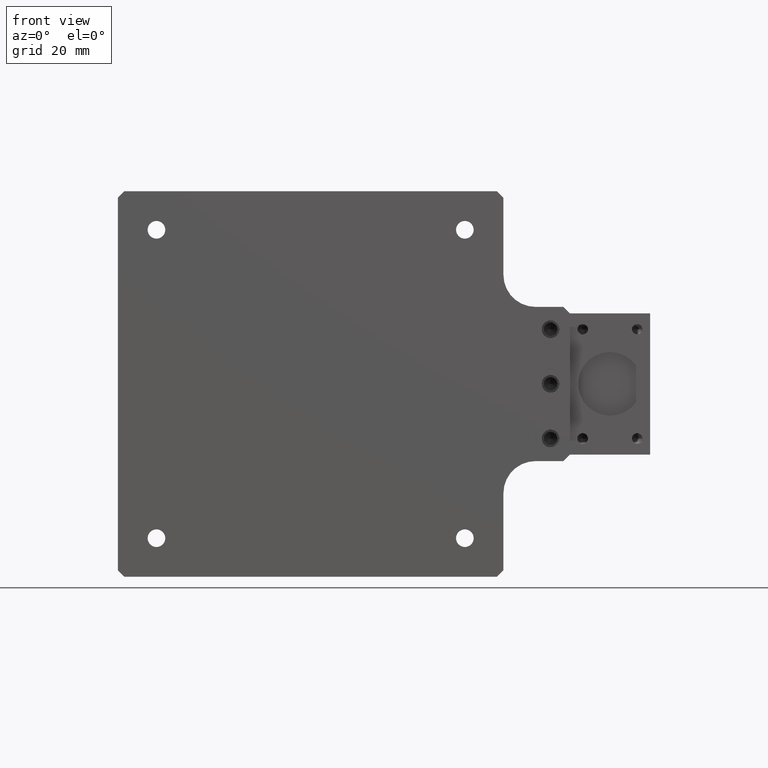
[diagram: clean part render]
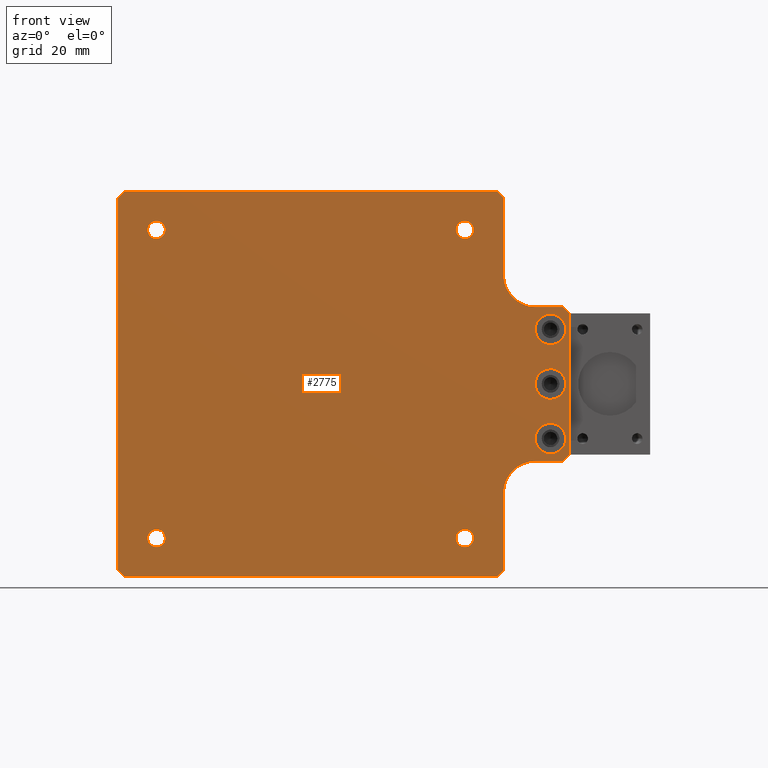
[diagram: same view with one face highlighted and labeled with its STEP entity id]
A machine part, front view. The second image highlights one B-rep face of the part: STEP entity #2775.
In plain terms, the highlighted planar face has unit normal (0, -1, 0).
Its self-contained STEP definition (entity closure, byte-faithful):
#1277=CARTESIAN_POINT('',(-5.833E1,1.E1,4.8E1));
#1278=DIRECTION('',(0.E0,-1.E0,0.E0));
#1279=DIRECTION('',(-1.E0,0.E0,0.E0));
#1280=AXIS2_PLACEMENT_3D('',#1277,#1278,#1279);
#1285=CARTESIAN_POINT('',(-5.833E1,1.E1,4.8E1));
#1286=DIRECTION('',(0.E0,-1.E0,0.E0));
#1287=DIRECTION('',(1.E0,0.E0,0.E0));
#1288=AXIS2_PLACEMENT_3D('',#1285,#1286,#1287);
#1293=CARTESIAN_POINT('',(3.767E1,1.E1,4.8E1));
#1294=DIRECTION('',(0.E0,-1.E0,0.E0));
#1295=DIRECTION('',(-1.E0,0.E0,0.E0));
#1296=AXIS2_PLACEMENT_3D('',#1293,#1294,#1295);
#1301=CARTESIAN_POINT('',(3.767E1,1.E1,4.8E1));
#1302=DIRECTION('',(0.E0,-1.E0,0.E0));
#1303=DIRECTION('',(1.E0,0.E0,0.E0));
#1304=AXIS2_PLACEMENT_3D('',#1301,#1302,#1303);
#1309=CARTESIAN_POINT('',(-5.833E1,1.E1,-4.8E1));
#1310=DIRECTION('',(0.E0,-1.E0,0.E0));
#1311=DIRECTION('',(-1.E0,0.E0,0.E0));
#1312=AXIS2_PLACEMENT_3D('',#1309,#1310,#1311);
#1317=CARTESIAN_POINT('',(-5.833E1,1.E1,-4.8E1));
#1318=DIRECTION('',(0.E0,-1.E0,0.E0));
#1319=DIRECTION('',(1.E0,0.E0,0.E0));
#1320=AXIS2_PLACEMENT_3D('',#1317,#1318,#1319);
#1325=CARTESIAN_POINT('',(3.767E1,1.E1,-4.8E1));
#1326=DIRECTION('',(0.E0,-1.E0,0.E0));
#1327=DIRECTION('',(-1.E0,0.E0,0.E0));
#1328=AXIS2_PLACEMENT_3D('',#1325,#1326,#1327);
#1333=CARTESIAN_POINT('',(3.767E1,1.E1,-4.8E1));
#1334=DIRECTION('',(0.E0,-1.E0,0.E0));
#1335=DIRECTION('',(1.E0,0.E0,0.E0));
#1336=AXIS2_PLACEMENT_3D('',#1333,#1334,#1335);
#1341=CARTESIAN_POINT('',(6.433E1,1.E1,-1.7E1));
#1342=DIRECTION('',(0.E0,1.E0,0.E0));
#1343=DIRECTION('',(1.E0,0.E0,0.E0));
#1344=AXIS2_PLACEMENT_3D('',#1341,#1342,#1343);
#1349=CARTESIAN_POINT('',(6.433E1,1.E1,-1.7E1));
#1350=DIRECTION('',(0.E0,1.E0,0.E0));
#1351=DIRECTION('',(-1.E0,0.E0,0.E0));
#1352=AXIS2_PLACEMENT_3D('',#1349,#1350,#1351);
#1357=CARTESIAN_POINT('',(6.433E1,1.E1,0.E0));
#1358=DIRECTION('',(0.E0,1.E0,0.E0));
#1359=DIRECTION('',(1.E0,0.E0,0.E0));
#1360=AXIS2_PLACEMENT_3D('',#1357,#1358,#1359);
#1365=CARTESIAN_POINT('',(6.433E1,1.E1,0.E0));
#1366=DIRECTION('',(0.E0,1.E0,0.E0));
#1367=DIRECTION('',(-1.E0,0.E0,0.E0));
#1368=AXIS2_PLACEMENT_3D('',#1365,#1366,#1367);
#1373=CARTESIAN_POINT('',(6.433E1,1.E1,1.7E1));
#1374=DIRECTION('',(0.E0,1.E0,0.E0));
#1375=DIRECTION('',(1.E0,0.E0,0.E0));
#1376=AXIS2_PLACEMENT_3D('',#1373,#1374,#1375);
#1381=CARTESIAN_POINT('',(6.433E1,1.E1,1.7E1));
#1382=DIRECTION('',(0.E0,1.E0,0.E0));
#1383=DIRECTION('',(-1.E0,0.E0,0.E0));
#1384=AXIS2_PLACEMENT_3D('',#1381,#1382,#1383);
#1389=DIRECTION('',(7.071067811865E-1,0.E0,-7.071067811865E-1));
#1390=VECTOR('',#1389,2.828427124746E0);
#1391=CARTESIAN_POINT('',(4.767E1,1.E1,6.E1));
#1392=LINE('',#1391,#1390);
#1396=DIRECTION('',(1.E0,0.E0,0.E0));
#1397=VECTOR('',#1396,1.16E2);
#1398=CARTESIAN_POINT('',(-6.833E1,1.E1,6.E1));
#1399=LINE('',#1398,#1397);
#1403=DIRECTION('',(7.071067811865E-1,0.E0,7.071067811865E-1));
#1404=VECTOR('',#1403,2.828427124746E0);
#1405=CARTESIAN_POINT('',(-7.033E1,1.E1,5.8E1));
#1406=LINE('',#1405,#1404);
#1410=DIRECTION('',(0.E0,0.E0,1.E0));
#1411=VECTOR('',#1410,1.16E2);
#1412=CARTESIAN_POINT('',(-7.033E1,1.E1,-5.8E1));
#1413=LINE('',#1412,#1411);
#1417=DIRECTION('',(-7.071067811865E-1,0.E0,7.071067811865E-1));
#1418=VECTOR('',#1417,2.828427124746E0);
#1419=CARTESIAN_POINT('',(-6.833E1,1.E1,-6.E1));
#1420=LINE('',#1419,#1418);
#1424=DIRECTION('',(-1.E0,0.E0,0.E0));
#1425=VECTOR('',#1424,1.16E2);
#1426=CARTESIAN_POINT('',(4.767E1,1.E1,-6.E1));
#1427=LINE('',#1426,#1425);
#1431=DIRECTION('',(-7.071067811865E-1,0.E0,-7.071067811865E-1));
#1432=VECTOR('',#1431,2.828427124746E0);
#1433=CARTESIAN_POINT('',(4.967E1,1.E1,-5.8E1));
#1434=LINE('',#1433,#1432);
#1438=DIRECTION('',(0.E0,0.E0,1.E0));
#1439=VECTOR('',#1438,2.4E1);
#1440=CARTESIAN_POINT('',(4.967E1,1.E1,-5.8E1));
#1441=LINE('',#1440,#1439);
#1445=DIRECTION('',(-1.E0,0.E0,0.E0));
#1446=VECTOR('',#1445,8.66E0);
#1447=CARTESIAN_POINT('',(6.833E1,1.E1,-2.4E1));
#1448=LINE('',#1447,#1446);
#1452=DIRECTION('',(-7.071067811865E-1,0.E0,-7.071067811865E-1));
#1453=VECTOR('',#1452,2.828427124746E0);
#1454=CARTESIAN_POINT('',(7.033E1,1.E1,-2.2E1));
#1455=LINE('',#1454,#1453);
#1459=DIRECTION('',(0.E0,0.E0,-1.E0));
#1460=VECTOR('',#1459,4.4E1);
#1461=CARTESIAN_POINT('',(7.033E1,1.E1,2.2E1));
#1462=LINE('',#1461,#1460);
#1466=DIRECTION('',(7.071067811865E-1,0.E0,-7.071067811865E-1));
#1467=VECTOR('',#1466,2.828427124746E0);
#1468=CARTESIAN_POINT('',(6.833E1,1.E1,2.4E1));
#1469=LINE('',#1468,#1467);
#1473=DIRECTION('',(-1.E0,0.E0,0.E0));
#1474=VECTOR('',#1473,8.66E0);
#1475=CARTESIAN_POINT('',(6.833E1,1.E1,2.4E1));
#1476=LINE('',#1475,#1474);
#1480=DIRECTION('',(0.E0,0.E0,-1.E0));
#1481=VECTOR('',#1480,2.4E1);
#1482=CARTESIAN_POINT('',(4.967E1,1.E1,5.8E1));
#1483=LINE('',#1482,#1481);
#1731=CARTESIAN_POINT('',(5.967E1,1.E1,3.4E1));
#1732=DIRECTION('',(0.E0,-1.E0,0.E0));
#1733=DIRECTION('',(-1.E0,0.E0,0.E0));
#1734=AXIS2_PLACEMENT_3D('',#1731,#1732,#1733);
#1789=CARTESIAN_POINT('',(5.967E1,1.E1,-3.4E1));
#1790=DIRECTION('',(0.E0,-1.E0,0.E0));
#1791=DIRECTION('',(0.E0,0.E0,1.E0));
#1792=AXIS2_PLACEMENT_3D('',#1789,#1790,#1791);
#1857=CARTESIAN_POINT('',(-6.108E1,1.E1,4.8E1));
#1858=CARTESIAN_POINT('',(-5.558E1,1.E1,4.8E1));
#1859=VERTEX_POINT('',#1857);
#1860=VERTEX_POINT('',#1858);
#1869=CARTESIAN_POINT('',(3.492E1,1.E1,4.8E1));
#1870=CARTESIAN_POINT('',(4.042E1,1.E1,4.8E1));
#1871=VERTEX_POINT('',#1869);
#1872=VERTEX_POINT('',#1870);
#1877=CARTESIAN_POINT('',(-6.108E1,1.E1,-4.8E1));
#1878=CARTESIAN_POINT('',(-5.558E1,1.E1,-4.8E1));
#1879=VERTEX_POINT('',#1877);
#1880=VERTEX_POINT('',#1878);
#1885=CARTESIAN_POINT('',(3.492E1,1.E1,-4.8E1));
#1886=CARTESIAN_POINT('',(4.042E1,1.E1,-4.8E1));
#1887=VERTEX_POINT('',#1885);
#1888=VERTEX_POINT('',#1886);
#1909=CARTESIAN_POINT('',(-6.833E1,1.E1,-6.E1));
#1910=VERTEX_POINT('',#1909);
#1911=CARTESIAN_POINT('',(-7.033E1,1.E1,-5.8E1));
#1912=VERTEX_POINT('',#1911);
#1917=CARTESIAN_POINT('',(-7.033E1,1.E1,5.8E1));
#1918=VERTEX_POINT('',#1917);
#1919=CARTESIAN_POINT('',(-6.833E1,1.E1,6.E1));
#1920=VERTEX_POINT('',#1919);
#1938=CARTESIAN_POINT('',(5.967E1,1.E1,2.4E1));
#1940=VERTEX_POINT('',#1938);
#1942=CARTESIAN_POINT('',(4.967E1,1.E1,3.4E1));
#1944=VERTEX_POINT('',#1942);
#1946=CARTESIAN_POINT('',(4.967E1,1.E1,-3.4E1));
#1948=VERTEX_POINT('',#1946);
#1950=CARTESIAN_POINT('',(5.967E1,1.E1,-2.4E1));
#1952=VERTEX_POINT('',#1950);
#1953=CARTESIAN_POINT('',(4.767E1,1.E1,6.E1));
#1954=CARTESIAN_POINT('',(4.967E1,1.E1,5.8E1));
#1955=VERTEX_POINT('',#1953);
#1956=VERTEX_POINT('',#1954);
#1965=CARTESIAN_POINT('',(4.967E1,1.E1,-5.8E1));
#1966=VERTEX_POINT('',#1965);
#1967=CARTESIAN_POINT('',(4.767E1,1.E1,-6.E1));
#1968=VERTEX_POINT('',#1967);
#1995=CARTESIAN_POINT('',(7.033E1,1.E1,-2.2E1));
#1996=CARTESIAN_POINT('',(6.833E1,1.E1,-2.4E1));
#1997=VERTEX_POINT('',#1995);
#1998=VERTEX_POINT('',#1996);
#2007=CARTESIAN_POINT('',(6.833E1,1.E1,2.4E1));
#2008=VERTEX_POINT('',#2007);
#2009=CARTESIAN_POINT('',(7.033E1,1.E1,2.2E1));
#2010=VERTEX_POINT('',#2009);
#2058=CARTESIAN_POINT('',(6.908E1,1.E1,-1.7E1));
#2059=CARTESIAN_POINT('',(5.958E1,1.E1,-1.7E1));
#2060=VERTEX_POINT('',#2058);
#2061=VERTEX_POINT('',#2059);
#2066=CARTESIAN_POINT('',(6.908E1,1.E1,0.E0));
#2067=CARTESIAN_POINT('',(5.958E1,1.E1,0.E0));
#2068=VERTEX_POINT('',#2066);
#2069=VERTEX_POINT('',#2067);
#2074=CARTESIAN_POINT('',(6.908E1,1.E1,1.7E1));
#2075=CARTESIAN_POINT('',(5.958E1,1.E1,1.7E1));
#2076=VERTEX_POINT('',#2074);
#2077=VERTEX_POINT('',#2075);
#2696=CARTESIAN_POINT('',(0.E0,1.E1,0.E0));
#2697=DIRECTION('',(0.E0,1.E0,0.E0));
#2698=DIRECTION('',(1.E0,0.E0,0.E0));
#2699=AXIS2_PLACEMENT_3D('',#2696,#2697,#2698);
#2700=PLANE('',#2699);
#2702=ORIENTED_EDGE('',*,*,#2701,.F.);
#2704=ORIENTED_EDGE('',*,*,#2703,.F.);
#2706=ORIENTED_EDGE('',*,*,#2705,.F.);
#2708=ORIENTED_EDGE('',*,*,#2707,.F.);
#2710=ORIENTED_EDGE('',*,*,#2709,.F.);
#2712=ORIENTED_EDGE('',*,*,#2711,.F.);
#2714=ORIENTED_EDGE('',*,*,#2713,.F.);
#2716=ORIENTED_EDGE('',*,*,#2715,.T.);
#2718=ORIENTED_EDGE('',*,*,#2717,.F.);
#2720=ORIENTED_EDGE('',*,*,#2719,.F.);
#2722=ORIENTED_EDGE('',*,*,#2721,.F.);
#2724=ORIENTED_EDGE('',*,*,#2723,.F.);
#2726=ORIENTED_EDGE('',*,*,#2725,.F.);
#2728=ORIENTED_EDGE('',*,*,#2727,.T.);
#2730=ORIENTED_EDGE('',*,*,#2729,.F.);
#2732=ORIENTED_EDGE('',*,*,#2731,.F.);
#2733=EDGE_LOOP('',(#2702,#2704,#2706,#2708,#2710,#2712,#2714,#2716,#2718,#2720,
#2722,#2724,#2726,#2728,#2730,#2732));
#2734=FACE_OUTER_BOUND('',#2733,.F.);
#2736=ORIENTED_EDGE('',*,*,#2735,.F.);
#2738=ORIENTED_EDGE('',*,*,#2737,.F.);
#2739=EDGE_LOOP('',(#2736,#2738));
#2740=FACE_BOUND('',#2739,.F.);
#2742=ORIENTED_EDGE('',*,*,#2741,.F.);
#2744=ORIENTED_EDGE('',*,*,#2743,.F.);
#2745=EDGE_LOOP('',(#2742,#2744));
#2746=FACE_BOUND('',#2745,.F.);
#2748=ORIENTED_EDGE('',*,*,#2747,.F.);
#2750=ORIENTED_EDGE('',*,*,#2749,.F.);
#2751=EDGE_LOOP('',(#2748,#2750));
#2752=FACE_BOUND('',#2751,.F.);
#2754=ORIENTED_EDGE('',*,*,#2753,.T.);
#2756=ORIENTED_EDGE('',*,*,#2755,.T.);
#2757=EDGE_LOOP('',(#2754,#2756));
#2758=FACE_BOUND('',#2757,.F.);
#2760=ORIENTED_EDGE('',*,*,#2759,.T.);
#2762=ORIENTED_EDGE('',*,*,#2761,.T.);
#2763=EDGE_LOOP('',(#2760,#2762));
#2764=FACE_BOUND('',#2763,.F.);
#2766=ORIENTED_EDGE('',*,*,#2765,.T.);
#2768=ORIENTED_EDGE('',*,*,#2767,.T.);
#2769=EDGE_LOOP('',(#2766,#2768));
#2770=FACE_BOUND('',#2769,.F.);
#2771=ORIENTED_EDGE('',*,*,#2676,.F.);
#2772=ORIENTED_EDGE('',*,*,#2690,.F.);
#2773=EDGE_LOOP('',(#2771,#2772));
#2774=FACE_BOUND('',#2773,.F.);
#1281=CIRCLE('',#1280,2.75E0);
#1289=CIRCLE('',#1288,2.75E0);
#1297=CIRCLE('',#1296,2.75E0);
#1305=CIRCLE('',#1304,2.75E0);
#1313=CIRCLE('',#1312,2.75E0);
#1321=CIRCLE('',#1320,2.75E0);
#1329=CIRCLE('',#1328,2.75E0);
#1337=CIRCLE('',#1336,2.75E0);
#1345=CIRCLE('',#1344,4.75E0);
#1353=CIRCLE('',#1352,4.75E0);
#1361=CIRCLE('',#1360,4.75E0);
#1369=CIRCLE('',#1368,4.75E0);
#1377=CIRCLE('',#1376,4.75E0);
#1385=CIRCLE('',#1384,4.75E0);
#1735=CIRCLE('',#1734,1.E1);
#1793=CIRCLE('',#1792,1.E1);
#2676=EDGE_CURVE('',#1859,#1860,#1281,.T.);
#2690=EDGE_CURVE('',#1860,#1859,#1289,.T.);
#2701=EDGE_CURVE('',#1955,#1956,#1392,.T.);
#2703=EDGE_CURVE('',#1920,#1955,#1399,.T.);
#2705=EDGE_CURVE('',#1918,#1920,#1406,.T.);
#2707=EDGE_CURVE('',#1912,#1918,#1413,.T.);
#2709=EDGE_CURVE('',#1910,#1912,#1420,.T.);
#2711=EDGE_CURVE('',#1968,#1910,#1427,.T.);
#2713=EDGE_CURVE('',#1966,#1968,#1434,.T.);
#2715=EDGE_CURVE('',#1966,#1948,#1441,.T.);
#2717=EDGE_CURVE('',#1952,#1948,#1793,.T.);
#2719=EDGE_CURVE('',#1998,#1952,#1448,.T.);
#2721=EDGE_CURVE('',#1997,#1998,#1455,.T.);
#2723=EDGE_CURVE('',#2010,#1997,#1462,.T.);
#2725=EDGE_CURVE('',#2008,#2010,#1469,.T.);
#2727=EDGE_CURVE('',#2008,#1940,#1476,.T.);
#2729=EDGE_CURVE('',#1944,#1940,#1735,.T.);
#2731=EDGE_CURVE('',#1956,#1944,#1483,.T.);
#2735=EDGE_CURVE('',#1871,#1872,#1297,.T.);
#2737=EDGE_CURVE('',#1872,#1871,#1305,.T.);
#2741=EDGE_CURVE('',#1879,#1880,#1313,.T.);
#2743=EDGE_CURVE('',#1880,#1879,#1321,.T.);
#2747=EDGE_CURVE('',#1887,#1888,#1329,.T.);
#2749=EDGE_CURVE('',#1888,#1887,#1337,.T.);
#2753=EDGE_CURVE('',#2060,#2061,#1345,.T.);
#2755=EDGE_CURVE('',#2061,#2060,#1353,.T.);
#2759=EDGE_CURVE('',#2068,#2069,#1361,.T.);
#2761=EDGE_CURVE('',#2069,#2068,#1369,.T.);
#2765=EDGE_CURVE('',#2076,#2077,#1377,.T.);
#2767=EDGE_CURVE('',#2077,#2076,#1385,.T.);
#2775=ADVANCED_FACE('',(#2734,#2740,#2746,#2752,#2758,#2764,#2770,#2774),#2700,
.T.);